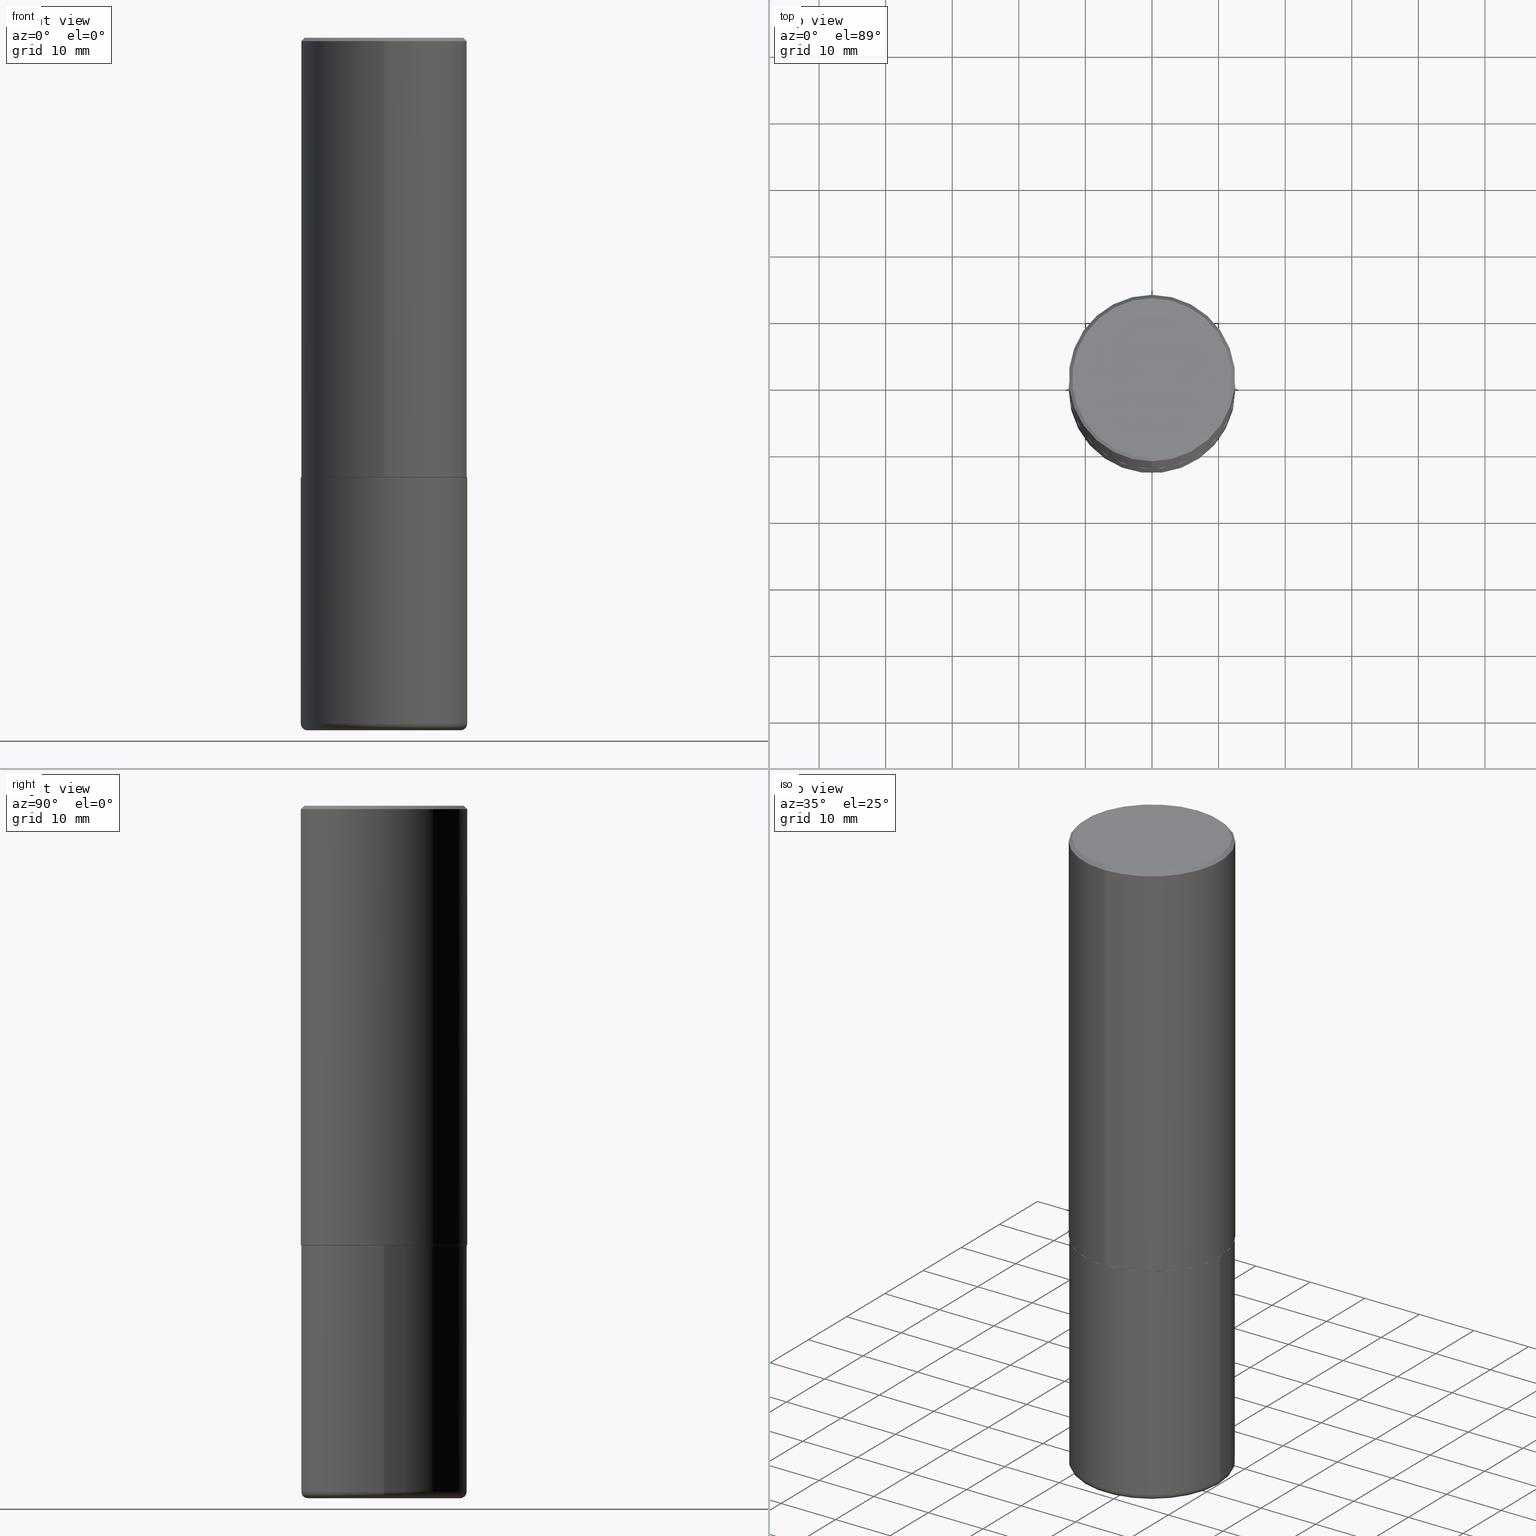
[diagram: canonical four-view strip — front | top / right | iso, engineering-drawing reading convention]
A machine part, canonical four-view strip (front | top / right | iso — engineering-drawing reading convention). The complete STEP part file that produces these views, byte-faithful:
ISO-10303-21;
HEADER;
FILE_DESCRIPTION (( 'STEP AP203' ),
    '1' );
FILE_NAME ('46866.STEP',
    '2024-03-05T05:16:05',
    ( '' ),
    ( '' ),
    'SwSTEP 2.0',
    'SolidWorks 2023',
    '' );
FILE_SCHEMA (( 'CONFIG_CONTROL_DESIGN' ));
ENDSEC;

DATA;
#1 = DIRECTION ( 'NONE',  ( 6.982962677686265922E-15, 1.000000000000000000, -3.495297233588267070E-15 ) ) ;
#2 = VERTEX_POINT ( 'NONE', #206 ) ;
#3 = DIRECTION ( 'NONE',  ( 0.000000000000000000, 0.000000000000000000, 1.000000000000000000 ) ) ;
#4 = DIRECTION ( 'NONE',  ( 2.445165534156573035E-29, -3.491915641649220758E-15, -1.000000000000000000 ) ) ;
#5 = FACE_OUTER_BOUND ( 'NONE', #256, .T. ) ;
#6 = CARTESIAN_POINT ( 'NONE',  ( 1.001297202692504327E-28, -1.429587034189326465E-14, -4.094500000000000917 ) ) ;
#7 = ADVANCED_FACE ( 'NONE', ( #263 ), #40, .T. ) ;
#8 = LINE ( 'NONE', #204, #114 ) ;
#9 = DIRECTION ( 'NONE',  ( -2.445165534156573035E-29, 3.491915641649220758E-15, 1.000000000000000000 ) ) ;
#10 = AXIS2_PLACEMENT_3D ( 'NONE', #104, #234, #47 ) ;
#11 = ADVANCED_FACE ( 'NONE', ( #75 ), #164, .T. ) ;
#12 = CARTESIAN_POINT ( 'NONE',  ( 3.496936074043366423E-15, 0.4921499999999912056, -2.597400000000002152 ) ) ;
#13 = DIRECTION ( 'NONE',  ( -6.982962677686265922E-15, -1.000000000000000000, 3.337287582609300506E-15 ) ) ;
#14 = CC_DESIGN_PERSON_AND_ORGANIZATION_ASSIGNMENT ( #26, #258, ( #295 ) ) ;
#15 = CYLINDRICAL_SURFACE ( 'NONE', #361, 0.4921500000000000874 ) ;
#16 = EDGE_CURVE ( 'NONE', #92, #259, #77, .T. ) ;
#17 = TOROIDAL_SURFACE ( 'NONE', #308, 0.4527499999999999858, 0.03940000000000030284 ) ;
#18 = CC_DESIGN_PERSON_AND_ORGANIZATION_ASSIGNMENT ( #363, #67, ( #29 ) ) ;
#19 = CIRCLE ( 'NONE', #367, 0.03940000000000026814 ) ;
#20 = CARTESIAN_POINT ( 'NONE',  ( -0.4527499999999999858, -1.094132374098898721E-14, -4.055100000000000371 ) ) ;
#21 = CIRCLE ( 'NONE', #28, 0.03940000000000026814 ) ;
#22 = ORIENTED_EDGE ( 'NONE', *, *, #304, .T. ) ;
#23 = DATE_AND_TIME ( #315, #414 ) ;
#24 = VERTEX_POINT ( 'NONE', #100 ) ;
#25 = ORIENTED_EDGE ( 'NONE', *, *, #48, .T. ) ;
#26 = PERSON_AND_ORGANIZATION ( #111, #375 ) ;
#27 = SHAPE_DEFINITION_REPRESENTATION ( #390, #227 ) ;
#28 = AXIS2_PLACEMENT_3D ( 'NONE', #20, #79, #178 ) ;
#29 = PRODUCT ( '46866', '46866', '', ( #264 ) ) ;
#30 = ADVANCED_FACE ( 'NONE', ( #66 ), #69, .F. ) ;
#31 = COORDINATED_UNIVERSAL_TIME_OFFSET ( 5, 0, .BEHIND. ) ;
#32 = DIRECTION ( 'NONE',  ( -2.445165534156573315E-29, 3.491915641649220758E-15, 1.000000000000000000 ) ) ;
#33 = ORIENTED_EDGE ( 'NONE', *, *, #101, .F. ) ;
#34 = EDGE_CURVE ( 'NONE', #127, #259, #109, .T. ) ;
#35 = CARTESIAN_POINT ( 'NONE',  ( -3.436665081823296565E-15, -0.4921500000000000874, 1.718546283037664290E-15 ) ) ;
#36 = DIRECTION ( 'NONE',  ( -2.445165534156573035E-29, 3.491915641649220758E-15, 1.000000000000000000 ) ) ;
#37 = CARTESIAN_POINT ( 'NONE',  ( -3.376394089603258656E-15, -0.4921500000000000874, -0.01999999999999838712 ) ) ;
#38 = CC_DESIGN_SECURITY_CLASSIFICATION ( #353, ( #295 ) ) ;
#39 = CARTESIAN_POINT ( 'NONE',  ( 0.4921499999999999764, -3.436665081823295777E-15, 2.399810400207969603E-29 ) ) ;
#40 = CYLINDRICAL_SURFACE ( 'NONE', #113, 0.4921500000000000874 ) ;
#41 = DIRECTION ( 'NONE',  ( 4.937700262164520432E-15, 0.7071067811865411334, -0.7071067811865537900 ) ) ;
#42 = DIRECTION ( 'NONE',  ( -4.851104656540936665E-15, -0.7071067811865460184, -0.7071067811865489050 ) ) ;
#43 = CARTESIAN_POINT ( 'NONE',  ( 6.353518123952439154E-29, -9.073393603261336214E-15, -2.598400000000000265 ) ) ;
#44 = TOROIDAL_SURFACE ( 'NONE', #397, 0.4527499999999999858, 0.03940000000000030284 ) ;
#45 = PLANE ( 'NONE',  #389 ) ;
#46 = DIRECTION ( 'NONE',  ( -2.445165534156572474E-29, 3.491915641649220758E-15, 1.000000000000000000 ) ) ;
#47 = DIRECTION ( 'NONE',  ( -6.982962677686264344E-15, -1.000000000000000000, 3.491915641649220363E-15 ) ) ;
#48 = EDGE_CURVE ( 'NONE', #2, #412, #313, .T. ) ;
#49 = APPROVAL_STATUS ( 'not_yet_approved' ) ;
#50 = DIRECTION ( 'NONE',  ( -2.445468806185136597E-29, 3.491481338843145583E-15, 1.000000000000000000 ) ) ;
#51 = ORIENTED_EDGE ( 'NONE', *, *, #48, .F. ) ;
#52 = COORDINATED_UNIVERSAL_TIME_OFFSET ( 5, 0, .BEHIND. ) ;
#53 = AXIS2_PLACEMENT_3D ( 'NONE', #362, #267, #233 ) ;
#54 = DIRECTION ( 'NONE',  ( -2.445468806185136597E-29, 3.491481338843145583E-15, 1.000000000000000000 ) ) ;
#55 = AXIS2_PLACEMENT_3D ( 'NONE', #198, #144, #106 ) ;
#56 = APPROVAL ( #49, 'UNSPECIFIED' ) ;
#57 = ORIENTED_EDGE ( 'NONE', *, *, #407, .T. ) ;
#58 = APPROVAL_DATE_TIME ( #383, #192 ) ;
#59 = DATE_AND_TIME ( #126, #99 ) ;
#60 = ORIENTED_EDGE ( 'NONE', *, *, #407, .F. ) ;
#61 = VERTEX_POINT ( 'NONE', #103 ) ;
#62 = EDGE_CURVE ( 'NONE', #396, #259, #231, .T. ) ;
#63 = ORIENTED_EDGE ( 'NONE', *, *, #325, .T. ) ;
#64 = VECTOR ( 'NONE', #32, 39.37007874015748143 ) ;
#65 = ORIENTED_EDGE ( 'NONE', *, *, #68, .F. ) ;
#66 = FACE_OUTER_BOUND ( 'NONE', #249, .T. ) ;
#67 = PERSON_AND_ORGANIZATION_ROLE ( 'design_owner' ) ;
#68 = EDGE_CURVE ( 'NONE', #259, #92, #384, .T. ) ;
#69 = PLANE ( 'NONE',  #257 ) ;
#70 = FACE_OUTER_BOUND ( 'NONE', #349, .T. ) ;
#71 = DIRECTION ( 'NONE',  ( -2.445468806185136597E-29, 3.491481338843145583E-15, 1.000000000000000000 ) ) ;
#72 = AXIS2_PLACEMENT_3D ( 'NONE', #303, #117, #13 ) ;
#73 = CARTESIAN_POINT ( 'NONE',  ( 4.890331068313172624E-31, -6.983831283298479479E-17, -0.02000000000000010797 ) ) ;
#74 = DIRECTION ( 'NONE',  ( -6.982962677686264344E-15, -1.000000000000000000, 3.491915641649220363E-15 ) ) ;
#75 = FACE_OUTER_BOUND ( 'NONE', #252, .T. ) ;
#76 = FACE_OUTER_BOUND ( 'NONE', #228, .T. ) ;
#77 = CIRCLE ( 'NONE', #321, 0.4921500000000000319 ) ;
#78 = EDGE_CURVE ( 'NONE', #314, #92, #8, .T. ) ;
#79 = DIRECTION ( 'NONE',  ( 7.105427357601001859E-15, 1.000000000000000000, -3.491481338843145583E-15 ) ) ;
#80 = ADVANCED_FACE ( 'NONE', ( #161 ), #124, .T. ) ;
#81 = APPLICATION_PROTOCOL_DEFINITION ( 'international standard', 'config_control_design', 1994, #110 ) ;
#82 = ORIENTED_EDGE ( 'NONE', *, *, #325, .F. ) ;
#83 = AXIS2_PLACEMENT_3D ( 'NONE', #6, #71, #265 ) ;
#84 = VECTOR ( 'NONE', #402, 39.37007874015748143 ) ;
#85 = CARTESIAN_POINT ( 'NONE',  ( 6.354306145991459756E-29, -9.072265110850031044E-15, -2.598400000000000265 ) ) ;
#86 = ORIENTED_EDGE ( 'NONE', *, *, #68, .T. ) ;
#87 = CC_DESIGN_PERSON_AND_ORGANIZATION_ASSIGNMENT ( #152, #250, ( #255 ) ) ;
#88 = DIRECTION ( 'NONE',  ( 1.000000000000000000, -6.982962677686265922E-15, 0.000000000000000000 ) ) ;
#89 = ORIENTED_EDGE ( 'NONE', *, *, #381, .T. ) ;
#90 = AXIS2_PLACEMENT_3D ( 'NONE', #173, #4, #1 ) ;
#91 = EDGE_CURVE ( 'NONE', #396, #254, #403, .T. ) ;
#92 = VERTEX_POINT ( 'NONE', #168 ) ;
#93 = UNCERTAINTY_MEASURE_WITH_UNIT (LENGTH_MEASURE( 1.000000000000000082E-05 ), #169, 'distance_accuracy_value', 'NONE');
#94 = SECURITY_CLASSIFICATION_LEVEL ( 'unclassified' ) ;
#95 = EDGE_CURVE ( 'NONE', #412, #97, #19, .T. ) ;
#96 = ORIENTED_EDGE ( 'NONE', *, *, #16, .T. ) ;
#97 = VERTEX_POINT ( 'NONE', #294 ) ;
#98 = EDGE_CURVE ( 'NONE', #24, #127, #197, .T. ) ;
#99 = LOCAL_TIME ( 0, 16, 5.000000000000000000, #320 ) ;
#100 = CARTESIAN_POINT ( 'NONE',  ( -3.429682119145545865E-15, -0.4911500000000090238, -2.598399999999999377 ) ) ;
#101 = EDGE_CURVE ( 'NONE', #127, #314, #345, .T. ) ;
#102 = CARTESIAN_POINT ( 'NONE',  ( 0.000000000000000000, 0.000000000000000000, 0.000000000000000000 ) ) ;
#103 = CARTESIAN_POINT ( 'NONE',  ( 0.4921499999999999764, -1.250893019267332682E-14, -2.598400000000000265 ) ) ;
#104 = CARTESIAN_POINT ( 'NONE',  ( -2.509946669845094675E-45, 3.584428912360186000E-31, 1.026493558322981695E-16 ) ) ;
#105 = DIRECTION ( 'NONE',  ( 2.438088387897960049E-29, -3.491481338843145188E-15, -1.000000000000000000 ) ) ;
#106 = DIRECTION ( 'NONE',  ( 1.000000000000000000, -6.982962677686265922E-15, 0.000000000000000000 ) ) ;
#107 = FACE_OUTER_BOUND ( 'NONE', #360, .T. ) ;
#108 = LOCAL_TIME ( 0, 16, 5.000000000000000000, #52 ) ;
#109 = LINE ( 'NONE', #35, #64 ) ;
#110 = APPLICATION_CONTEXT ( 'configuration controlled 3d designs of mechanical parts and assemblies' ) ;
#111 = PERSON ( 'UNSPECIFIED', 'UNSPECIFIED', 'UNSPECIFIED', ('UNSPECIFIED'), ('UNSPECIFIED'), ('UNSPECIFIED') ) ;
#112 = CARTESIAN_POINT ( 'NONE',  ( -0.4921499999999999764, -8.118349469953103765E-15, -2.598400000000000265 ) ) ;
#113 = AXIS2_PLACEMENT_3D ( 'NONE', #388, #199, #364 ) ;
#114 = VECTOR ( 'NONE', #393, 39.37007874015748143 ) ;
#115 = CC_DESIGN_APPROVAL ( #192, ( #295 ) ) ;
#116 = DIRECTION ( 'NONE',  ( 2.445165534156573035E-29, -3.491915641649220758E-15, -1.000000000000000000 ) ) ;
#117 = DIRECTION ( 'NONE',  ( -2.445165534156573035E-29, 3.491915641649220758E-15, 1.000000000000000000 ) ) ;
#118 = ORIENTED_EDGE ( 'NONE', *, *, #101, .T. ) ;
#119 = CARTESIAN_POINT ( 'NONE',  ( -3.376394089603258656E-15, -0.4921500000000000874, -0.01999999999999838712 ) ) ;
#120 = ORIENTED_EDGE ( 'NONE', *, *, #78, .T. ) ;
#121 = APPROVAL_ROLE ( '' ) ;
#122 = ORIENTED_EDGE ( 'NONE', *, *, #156, .F. ) ;
#123 = ORIENTED_EDGE ( 'NONE', *, *, #91, .T. ) ;
#124 = CONICAL_SURFACE ( 'NONE', #90, 0.4921500000000000319, 0.7853981633974428389 ) ;
#125 = VECTOR ( 'NONE', #339, 39.37007874015748854 ) ;
#126 = CALENDAR_DATE ( 2024, 5, 3 ) ;
#127 = VERTEX_POINT ( 'NONE', #391 ) ;
#128 = EDGE_LOOP ( 'NONE', ( #118, #120, #65, #410 ) ) ;
#129 = DIRECTION ( 'NONE',  ( -6.982962677686266711E-15, -1.000000000000000000, 3.330506545156064285E-15 ) ) ;
#130 = DIRECTION ( 'NONE',  ( 1.000000000000000000, 0.000000000000000000, 0.000000000000000000 ) ) ;
#131 =( GEOMETRIC_REPRESENTATION_CONTEXT ( 3 ) GLOBAL_UNCERTAINTY_ASSIGNED_CONTEXT ( ( #93 ) ) GLOBAL_UNIT_ASSIGNED_CONTEXT ( ( #169, #280, #135 ) ) REPRESENTATION_CONTEXT ( 'NONE', 'WORKASPACE' ) );
#132 = DIRECTION ( 'NONE',  ( -2.445165534156573035E-29, 3.491915641649220758E-15, 1.000000000000000000 ) ) ;
#133 = DIRECTION ( 'NONE',  ( -6.982962677686266711E-15, -1.000000000000000000, 3.330506545156064285E-15 ) ) ;
#134 = CARTESIAN_POINT ( 'NONE',  ( 0.4527499999999999858, -1.731984232946529805E-14, -4.055100000000000371 ) ) ;
#135 =( NAMED_UNIT ( * ) SI_UNIT ( $, .STERADIAN. ) SOLID_ANGLE_UNIT ( ) );
#136 = ORIENTED_EDGE ( 'NONE', *, *, #78, .F. ) ;
#137 = CIRCLE ( 'NONE', #377, 0.4527499999999999858 ) ;
#138 = CARTESIAN_POINT ( 'NONE',  ( 6.351072958418283916E-29, -9.069901687619687764E-15, -2.597400000000000375 ) ) ;
#139 = AXIS2_PLACEMENT_3D ( 'NONE', #376, #54, #177 ) ;
#140 = CARTESIAN_POINT ( 'NONE',  ( 9.916620555961347550E-29, -1.415830597714284070E-14, -4.055100000000000371 ) ) ;
#141 = DIRECTION ( 'NONE',  ( -2.445468806185136597E-29, 3.491481338843145583E-15, 1.000000000000000000 ) ) ;
#142 = FACE_OUTER_BOUND ( 'NONE', #350, .T. ) ;
#143 = CC_DESIGN_APPROVAL ( #213, ( #353 ) ) ;
#144 = DIRECTION ( 'NONE',  ( -2.445468806185136597E-29, 3.491481338843145583E-15, 1.000000000000000000 ) ) ;
#145 = CALENDAR_DATE ( 2024, 5, 3 ) ;
#146 = APPLICATION_CONTEXT ( 'configuration controlled 3d designs of mechanical parts and assemblies' ) ;
#147 = EDGE_CURVE ( 'NONE', #412, #2, #137, .T. ) ;
#148 = AXIS2_PLACEMENT_3D ( 'NONE', #333, #9, #74 ) ;
#149 = DATE_AND_TIME ( #145, #108 ) ;
#150 = AXIS2_PLACEMENT_3D ( 'NONE', #163, #366, #395 ) ;
#151 = DIRECTION ( 'NONE',  ( -2.445468806185136597E-29, 3.491481338843145583E-15, 1.000000000000000000 ) ) ;
#152 = PERSON_AND_ORGANIZATION ( #111, #375 ) ;
#153 = ORIENTED_EDGE ( 'NONE', *, *, #95, .F. ) ;
#154 = ORIENTED_EDGE ( 'NONE', *, *, #147, .T. ) ;
#155 = APPROVAL_STATUS ( 'not_yet_approved' ) ;
#156 = EDGE_CURVE ( 'NONE', #324, #24, #195, .T. ) ;
#157 = AXIS2_PLACEMENT_3D ( 'NONE', #138, #132, #129 ) ;
#158 = CC_DESIGN_PERSON_AND_ORGANIZATION_ASSIGNMENT ( #191, #319, ( #295 ) ) ;
#159 = ORIENTED_EDGE ( 'NONE', *, *, #243, .F. ) ;
#160 = PERSON_AND_ORGANIZATION ( #111, #375 ) ;
#161 = FACE_OUTER_BOUND ( 'NONE', #225, .T. ) ;
#162 = ORIENTED_EDGE ( 'NONE', *, *, #156, .T. ) ;
#163 = CARTESIAN_POINT ( 'NONE',  ( 6.353518123952441396E-29, -9.073393603261339369E-15, -2.598400000000000709 ) ) ;
#164 = CONICAL_SURFACE ( 'NONE', #186, 0.4911499999999999755, 0.7853981633974141952 ) ;
#165 = DIRECTION ( 'NONE',  ( -2.445468806185136877E-29, 3.491481338843145188E-15, 1.000000000000000000 ) ) ;
#166 = APPROVAL_PERSON_ORGANIZATION ( #160, #213, #292 ) ;
#167 = AXIS2_PLACEMENT_3D ( 'NONE', #205, #296, #133 ) ;
#168 = CARTESIAN_POINT ( 'NONE',  ( 3.436665081823296565E-15, 0.4921499999999999764, -0.02000000000000182535 ) ) ;
#169 =( CONVERSION_BASED_UNIT ( 'INCH', #307 ) LENGTH_UNIT ( ) NAMED_UNIT ( #214 ) );
#170 = CARTESIAN_POINT ( 'NONE',  ( 6.354306145991459756E-29, -9.072265110850031044E-15, -2.598400000000000265 ) ) ;
#171 = ADVANCED_FACE ( 'NONE', ( #107 ), #44, .T. ) ;
#172 = CARTESIAN_POINT ( 'NONE',  ( 0.4527499999999999858, -1.745740669421572042E-14, -4.094500000000000917 ) ) ;
#173 = CARTESIAN_POINT ( 'NONE',  ( 4.890331068313172624E-31, -6.983831283298479479E-17, -0.02000000000000010797 ) ) ;
#174 = DIRECTION ( 'NONE',  ( 1.000000000000000000, -6.982962677686266711E-15, 0.000000000000000000 ) ) ;
#175 = AXIS2_PLACEMENT_3D ( 'NONE', #379, #151, #174 ) ;
#176 = EDGE_CURVE ( 'NONE', #324, #314, #335, .T. ) ;
#177 = DIRECTION ( 'NONE',  ( 1.000000000000000000, -6.982962677686265922E-15, 4.876176775795935793E-29 ) ) ;
#178 = DIRECTION ( 'NONE',  ( -1.000000000000000000, 7.105427357601027102E-15, 0.000000000000000000 ) ) ;
#179 = CC_DESIGN_DATE_AND_TIME_ASSIGNMENT ( #59, #291, ( #353 ) ) ;
#180 =( LENGTH_UNIT ( ) NAMED_UNIT ( * ) SI_UNIT ( $, .METRE. ) );
#181 = AXIS2_PLACEMENT_3D ( 'NONE', #372, #3, #130 ) ;
#182 = APPROVAL_ROLE ( '' ) ;
#183 = FACE_OUTER_BOUND ( 'NONE', #224, .T. ) ;
#184 = ADVANCED_FACE ( 'NONE', ( #283 ), #15, .T. ) ;
#185 = ORIENTED_EDGE ( 'NONE', *, *, #341, .F. ) ;
#186 = AXIS2_PLACEMENT_3D ( 'NONE', #298, #236, #272 ) ;
#187 = ORIENTED_EDGE ( 'NONE', *, *, #359, .T. ) ;
#188 = AXIS2_PLACEMENT_3D ( 'NONE', #102, #328, #237 ) ;
#189 = ADVANCED_FACE ( 'NONE', ( #401 ), #342, .T. ) ;
#190 = ORIENTED_EDGE ( 'NONE', *, *, #16, .F. ) ;
#191 = PERSON_AND_ORGANIZATION ( #111, #375 ) ;
#192 = APPROVAL ( #155, 'UNSPECIFIED' ) ;
#193 = PERSON_AND_ORGANIZATION ( #111, #375 ) ;
#194 = ORIENTED_EDGE ( 'NONE', *, *, #359, .F. ) ;
#195 = CIRCLE ( 'NONE', #150, 0.4911499999999999755 ) ;
#196 = VECTOR ( 'NONE', #165, 39.37007874015748143 ) ;
#197 = LINE ( 'NONE', #327, #288 ) ;
#198 = CARTESIAN_POINT ( 'NONE',  ( 6.354306145991459756E-29, -9.072265110850031044E-15, -2.598400000000000265 ) ) ;
#199 = DIRECTION ( 'NONE',  ( -2.445165534156573035E-29, 3.491915641649220758E-15, 1.000000000000000000 ) ) ;
#200 = MANIFOLD_SOLID_BREP ( 'Body-Move/Copy2[2]', #278 ) ;
#201 = PERSON_AND_ORGANIZATION_ROLE ( 'classification_officer' ) ;
#202 = DIRECTION ( 'NONE',  ( 2.445165534156572474E-29, -3.491915641649220758E-15, -1.000000000000000000 ) ) ;
#203 = VECTOR ( 'NONE', #41, 39.37007874015748854 ) ;
#204 = CARTESIAN_POINT ( 'NONE',  ( 3.496936074043333291E-15, 0.4921500000000000874, -1.718546283037664290E-15 ) ) ;
#205 = CARTESIAN_POINT ( 'NONE',  ( 6.351072958418283916E-29, -9.069901687619687764E-15, -2.597400000000000375 ) ) ;
#206 = CARTESIAN_POINT ( 'NONE',  ( -0.4527499999999999858, -1.087012900441945672E-14, -4.094500000000000917 ) ) ;
#207 = ADVANCED_FACE ( 'NONE', ( #183 ), #45, .F. ) ;
#208 = CARTESIAN_POINT ( 'NONE',  ( -3.307789109625543719E-15, -0.4721500000000000696, 1.751357326036977986E-15 ) ) ;
#209 = CARTESIAN_POINT ( 'NONE',  ( 1.001297202692504327E-28, -1.429587034189326465E-14, -4.094500000000000917 ) ) ;
#210 = CARTESIAN_POINT ( 'NONE',  ( 9.916620555961347550E-29, -1.415830597714284070E-14, -4.055100000000000371 ) ) ;
#211 = AXIS2_PLACEMENT_3D ( 'NONE', #73, #116, #394 ) ;
#212 = DESIGN_CONTEXT ( 'detailed design', #146, 'design' ) ;
#213 = APPROVAL ( #417, 'UNSPECIFIED' ) ;
#214 = DIMENSIONAL_EXPONENTS ( 1.000000000000000000, 0.000000000000000000, 0.000000000000000000, 0.000000000000000000, 0.000000000000000000, 0.000000000000000000, 0.000000000000000000 ) ;
#215 = CARTESIAN_POINT ( 'NONE',  ( 9.916620555961347550E-29, -1.415830597714284070E-14, -4.055100000000000371 ) ) ;
#216 = CONICAL_SURFACE ( 'NONE', #72, 0.4911499999999999755, 0.7853981633974141952 ) ;
#217 = ORIENTED_EDGE ( 'NONE', *, *, #62, .F. ) ;
#218 = CARTESIAN_POINT ( 'NONE',  ( 3.493383360364596291E-15, 0.4911499999999908717, -2.598400000000002485 ) ) ;
#219 = VERTEX_POINT ( 'NONE', #112 ) ;
#220 = PERSON_AND_ORGANIZATION ( #111, #375 ) ;
#221 = PLANE ( 'NONE',  #404 ) ;
#222 = ORIENTED_EDGE ( 'NONE', *, *, #34, .T. ) ;
#223 = LOCAL_TIME ( 0, 16, 5.000000000000000000, #31 ) ;
#224 = EDGE_LOOP ( 'NONE', ( #194, #122 ) ) ;
#225 = EDGE_LOOP ( 'NONE', ( #380, #368, #86, #185 ) ) ;
#226 = ORIENTED_EDGE ( 'NONE', *, *, #281, .T. ) ;
#227 = ADVANCED_BREP_SHAPE_REPRESENTATION ( '46866', ( #340, #200, #181 ), #131 ) ;
#228 = EDGE_LOOP ( 'NONE', ( #413, #25, #330, #273 ) ) ;
#229 = CLOSED_SHELL ( 'NONE', ( #400, #171, #30, #189, #318, #245 ) ) ;
#230 = CONICAL_SURFACE ( 'NONE', #211, 0.4921500000000000319, 0.7853981633974428389 ) ;
#231 = LINE ( 'NONE', #37, #338 ) ;
#232 = EDGE_CURVE ( 'NONE', #2, #302, #21, .T. ) ;
#233 = DIRECTION ( 'NONE',  ( -6.982962677686265922E-15, -1.000000000000000000, 3.495297233588267070E-15 ) ) ;
#234 = DIRECTION ( 'NONE',  ( -2.445165534156573035E-29, 3.491915641649220758E-15, 1.000000000000000000 ) ) ;
#235 = ADVANCED_FACE ( 'NONE', ( #142 ), #216, .T. ) ;
#236 = DIRECTION ( 'NONE',  ( -2.445165534156573035E-29, 3.491915641649220758E-15, 1.000000000000000000 ) ) ;
#237 = DIRECTION ( 'NONE',  ( 1.000000000000000000, -6.982962677686265922E-15, 4.876176775795935793E-29 ) ) ;
#238 = APPROVAL_PERSON_ORGANIZATION ( #411, #192, #121 ) ;
#239 = DIRECTION ( 'NONE',  ( -6.982962677686266711E-15, -1.000000000000000000, 3.491481338843145583E-15 ) ) ;
#240 = CARTESIAN_POINT ( 'NONE',  ( 6.562578236870009420E-29, -1.923703063347065825E-14, -4.094500000000000917 ) ) ;
#241 = DIRECTION ( 'NONE',  ( -6.982962677686265922E-15, -1.000000000000000000, 3.491915641649220758E-15 ) ) ;
#242 = CC_DESIGN_APPROVAL ( #56, ( #255 ) ) ;
#243 = EDGE_CURVE ( 'NONE', #97, #302, #271, .T. ) ;
#244 = LINE ( 'NONE', #39, #196 ) ;
#245 = ADVANCED_FACE ( 'NONE', ( #311 ), #221, .T. ) ;
#246 = COORDINATED_UNIVERSAL_TIME_OFFSET ( 5, 0, .BEHIND. ) ;
#247 = AXIS2_PLACEMENT_3D ( 'NONE', #332, #202, #344 ) ;
#248 = DIRECTION ( 'NONE',  ( 1.000000000000000000, -6.982962677686266711E-15, 0.000000000000000000 ) ) ;
#249 = EDGE_LOOP ( 'NONE', ( #226, #354 ) ) ;
#250 = PERSON_AND_ORGANIZATION_ROLE ( 'creator' ) ;
#251 = DIRECTION ( 'NONE',  ( -2.445468806185136597E-29, 3.491481338843145583E-15, 1.000000000000000000 ) ) ;
#252 = EDGE_LOOP ( 'NONE', ( #187, #357, #33, #286 ) ) ;
#253 = COORDINATED_UNIVERSAL_TIME_OFFSET ( 5, 0, .BEHIND. ) ;
#254 = VERTEX_POINT ( 'NONE', #406 ) ;
#255 = PRODUCT_DEFINITION ( 'UNKNOWN', '', #295, #212 ) ;
#256 = EDGE_LOOP ( 'NONE', ( #277, #22, #356, #316 ) ) ;
#257 = AXIS2_PLACEMENT_3D ( 'NONE', #170, #105, #329 ) ;
#258 = PERSON_AND_ORGANIZATION_ROLE ( 'design_supplier' ) ;
#259 = VERTEX_POINT ( 'NONE', #119 ) ;
#260 = EDGE_LOOP ( 'NONE', ( #217, #60, #317, #96 ) ) ;
#261 = ORIENTED_EDGE ( 'NONE', *, *, #306, .T. ) ;
#262 = DATE_AND_TIME ( #326, #223 ) ;
#263 = FACE_OUTER_BOUND ( 'NONE', #287, .T. ) ;
#264 = MECHANICAL_CONTEXT ( 'NONE', #110, 'mechanical' ) ;
#265 = DIRECTION ( 'NONE',  ( 1.000000000000000000, -6.982962677686265133E-15, 0.000000000000000000 ) ) ;
#266 = FACE_OUTER_BOUND ( 'NONE', #260, .T. ) ;
#267 = DIRECTION ( 'NONE',  ( -2.445165534156573035E-29, 3.491915641649220758E-15, 1.000000000000000000 ) ) ;
#268 = CC_DESIGN_DATE_AND_TIME_ASSIGNMENT ( #23, #285, ( #255 ) ) ;
#269 = CYLINDRICAL_SURFACE ( 'NONE', #188, 0.4921499999999999764 ) ;
#270 = DIRECTION ( 'NONE',  ( -4.937700262164378437E-15, -0.7071067811865208164, 0.7071067811865739960 ) ) ;
#271 = CIRCLE ( 'NONE', #346, 0.4921499999999999209 ) ;
#272 = DIRECTION ( 'NONE',  ( -6.982962677686265922E-15, -1.000000000000000000, 3.337287582609300506E-15 ) ) ;
#273 = ORIENTED_EDGE ( 'NONE', *, *, #306, .F. ) ;
#274 = CARTESIAN_POINT ( 'NONE',  ( 3.489830646685794998E-15, 0.4911499999999908717, -2.598400000000002485 ) ) ;
#275 = PRODUCT_RELATED_PRODUCT_CATEGORY ( 'detail', '', ( #29 ) ) ;
#276 = CARTESIAN_POINT ( 'NONE',  ( -0.4921499999999999764, 3.496936074043332897E-15, -2.420853904668951509E-29 ) ) ;
#277 = ORIENTED_EDGE ( 'NONE', *, *, #243, .T. ) ;
#278 = CLOSED_SHELL ( 'NONE', ( #11, #184, #80, #347, #7, #235, #207, #416 ) ) ;
#279 = DIRECTION ( 'NONE',  ( 2.438088387897960049E-29, -3.491481338843145188E-15, -1.000000000000000000 ) ) ;
#280 =( NAMED_UNIT ( * ) PLANE_ANGLE_UNIT ( ) SI_UNIT ( $, .RADIAN. ) );
#281 = EDGE_CURVE ( 'NONE', #61, #219, #385, .T. ) ;
#282 = CIRCLE ( 'NONE', #55, 0.4921499999999999764 ) ;
#283 = FACE_OUTER_BOUND ( 'NONE', #128, .T. ) ;
#284 = EDGE_LOOP ( 'NONE', ( #387, #261, #89, #323 ) ) ;
#285 = DATE_TIME_ROLE ( 'creation_date' ) ;
#286 = ORIENTED_EDGE ( 'NONE', *, *, #98, .F. ) ;
#287 = EDGE_LOOP ( 'NONE', ( #136, #63, #222, #190 ) ) ;
#288 = VECTOR ( 'NONE', #270, 39.37007874015748854 ) ;
#289 = CIRCLE ( 'NONE', #167, 0.4921500000000002539 ) ;
#290 = ORIENTED_EDGE ( 'NONE', *, *, #232, .T. ) ;
#291 = DATE_TIME_ROLE ( 'classification_date' ) ;
#292 = APPROVAL_ROLE ( '' ) ;
#293 = DIRECTION ( 'NONE',  ( 1.000000000000000000, -6.982962677686265133E-15, 0.000000000000000000 ) ) ;
#294 = CARTESIAN_POINT ( 'NONE',  ( 0.4921500000000000874, -1.759497105896613648E-14, -4.055100000000000371 ) ) ;
#295 = PRODUCT_DEFINITION_FORMATION_WITH_SPECIFIED_SOURCE ( 'ANY', '', #29, .NOT_KNOWN. ) ;
#296 = DIRECTION ( 'NONE',  ( -2.445165534156573035E-29, 3.491915641649220758E-15, 1.000000000000000000 ) ) ;
#297 = DIRECTION ( 'NONE',  ( 1.000000000000000000, -6.982962677686230423E-15, 0.000000000000000000 ) ) ;
#298 = CARTESIAN_POINT ( 'NONE',  ( 6.353518123952441396E-29, -9.073393603261339369E-15, -2.598400000000000709 ) ) ;
#299 = DIRECTION ( 'NONE',  ( -6.982962677686265922E-15, -1.000000000000000000, 3.495297233588267070E-15 ) ) ;
#300 = CIRCLE ( 'NONE', #175, 0.4921499999999999209 ) ;
#301 = DIRECTION ( 'NONE',  ( 1.000000000000000000, -6.982962677686270655E-15, 4.883557194083114022E-29 ) ) ;
#302 = VERTEX_POINT ( 'NONE', #382 ) ;
#303 = CARTESIAN_POINT ( 'NONE',  ( 6.353518123952441396E-29, -9.073393603261339369E-15, -2.598400000000000709 ) ) ;
#304 = EDGE_CURVE ( 'NONE', #302, #219, #351, .T. ) ;
#305 = CARTESIAN_POINT ( 'NONE',  ( 0.000000000000000000, 0.000000000000000000, 0.000000000000000000 ) ) ;
#306 = EDGE_CURVE ( 'NONE', #302, #97, #300, .T. ) ;
#307 = LENGTH_MEASURE_WITH_UNIT ( LENGTH_MEASURE( 0.02539999999999999897 ), #180 );
#308 = AXIS2_PLACEMENT_3D ( 'NONE', #215, #50, #336 ) ;
#309 = APPLICATION_PROTOCOL_DEFINITION ( 'international standard', 'config_control_design', 1994, #146 ) ;
#310 = APPROVAL_DATE_TIME ( #149, #56 ) ;
#311 = FACE_OUTER_BOUND ( 'NONE', #343, .T. ) ;
#312 = CC_DESIGN_PERSON_AND_ORGANIZATION_ASSIGNMENT ( #193, #201, ( #353 ) ) ;
#313 = CIRCLE ( 'NONE', #83, 0.4527499999999999858 ) ;
#314 = VERTEX_POINT ( 'NONE', #12 ) ;
#315 = CALENDAR_DATE ( 2024, 5, 3 ) ;
#316 = ORIENTED_EDGE ( 'NONE', *, *, #381, .F. ) ;
#317 = ORIENTED_EDGE ( 'NONE', *, *, #341, .T. ) ;
#318 = ADVANCED_FACE ( 'NONE', ( #76 ), #17, .T. ) ;
#319 = PERSON_AND_ORGANIZATION_ROLE ( 'creator' ) ;
#320 = COORDINATED_UNIVERSAL_TIME_OFFSET ( 5, 0, .BEHIND. ) ;
#321 = AXIS2_PLACEMENT_3D ( 'NONE', #371, #399, #299 ) ;
#322 = AXIS2_PLACEMENT_3D ( 'NONE', #85, #374, #88 ) ;
#323 = ORIENTED_EDGE ( 'NONE', *, *, #352, .F. ) ;
#324 = VERTEX_POINT ( 'NONE', #218 ) ;
#325 = EDGE_CURVE ( 'NONE', #314, #127, #289, .T. ) ;
#326 = CALENDAR_DATE ( 2024, 5, 3 ) ;
#327 = CARTESIAN_POINT ( 'NONE',  ( -3.429682119145545865E-15, -0.4911500000000090238, -2.598399999999999377 ) ) ;
#328 = DIRECTION ( 'NONE',  ( -2.445468806185136597E-29, 3.491481338843145583E-15, 1.000000000000000000 ) ) ;
#329 = DIRECTION ( 'NONE',  ( -1.000000000000000000, 6.982962677686265922E-15, -4.876176775795935793E-29 ) ) ;
#330 = ORIENTED_EDGE ( 'NONE', *, *, #95, .T. ) ;
#331 = AXIS2_PLACEMENT_3D ( 'NONE', #398, #36, #392 ) ;
#332 = CARTESIAN_POINT ( 'NONE',  ( 3.297005828269570364E-15, 0.4721500000000000696, -1.597383292288530583E-15 ) ) ;
#333 = CARTESIAN_POINT ( 'NONE',  ( -2.509946669845094675E-45, 3.584428912360186000E-31, 1.026493558322981695E-16 ) ) ;
#334 = CARTESIAN_POINT ( 'NONE',  ( 3.436665081823296565E-15, 0.4921499999999999764, -0.02000000000000182535 ) ) ;
#335 = LINE ( 'NONE', #274, #125 ) ;
#336 = DIRECTION ( 'NONE',  ( 1.000000000000000000, -6.982962677686270655E-15, 4.883557194083114022E-29 ) ) ;
#337 = DIRECTION ( 'NONE',  ( -6.982962677686265922E-15, -1.000000000000000000, 3.491915641649220758E-15 ) ) ;
#338 = VECTOR ( 'NONE', #42, 39.37007874015748854 ) ;
#339 = DIRECTION ( 'NONE',  ( 5.024295867787889629E-15, 0.7071067811865257013, 0.7071067811865691111 ) ) ;
#340 = MANIFOLD_SOLID_BREP ( 'Body-Move/Copy2[1]', #229 ) ;
#341 = EDGE_CURVE ( 'NONE', #254, #92, #370, .T. ) ;
#342 = CYLINDRICAL_SURFACE ( 'NONE', #139, 0.4921499999999999764 ) ;
#343 = EDGE_LOOP ( 'NONE', ( #358, #51 ) ) ;
#344 = DIRECTION ( 'NONE',  ( 6.982962677686265922E-15, 1.000000000000000000, -3.491915641649220758E-15 ) ) ;
#345 = CIRCLE ( 'NONE', #157, 0.4921500000000002539 ) ;
#346 = AXIS2_PLACEMENT_3D ( 'NONE', #210, #141, #248 ) ;
#347 = ADVANCED_FACE ( 'NONE', ( #266 ), #230, .T. ) ;
#348 = DIRECTION ( 'NONE',  ( -2.445165534156573035E-29, 3.491915641649220758E-15, 1.000000000000000000 ) ) ;
#349 = EDGE_LOOP ( 'NONE', ( #57, #123 ) ) ;
#350 = EDGE_LOOP ( 'NONE', ( #415, #162, #418, #82 ) ) ;
#351 = LINE ( 'NONE', #276, #84 ) ;
#352 = EDGE_CURVE ( 'NONE', #219, #61, #282, .T. ) ;
#353 = SECURITY_CLASSIFICATION ( '', '', #94 ) ;
#354 = ORIENTED_EDGE ( 'NONE', *, *, #352, .T. ) ;
#355 = CALENDAR_DATE ( 2024, 5, 3 ) ;
#356 = ORIENTED_EDGE ( 'NONE', *, *, #281, .F. ) ;
#357 = ORIENTED_EDGE ( 'NONE', *, *, #176, .T. ) ;
#358 = ORIENTED_EDGE ( 'NONE', *, *, #147, .F. ) ;
#359 = EDGE_CURVE ( 'NONE', #24, #324, #378, .T. ) ;
#360 = EDGE_LOOP ( 'NONE', ( #154, #290, #159, #153 ) ) ;
#361 = AXIS2_PLACEMENT_3D ( 'NONE', #305, #348, #337 ) ;
#362 = CARTESIAN_POINT ( 'NONE',  ( 4.890331068313172624E-31, -6.983831283298479479E-17, -0.02000000000000010797 ) ) ;
#363 = PERSON_AND_ORGANIZATION ( #111, #375 ) ;
#364 = DIRECTION ( 'NONE',  ( -6.982962677686265922E-15, -1.000000000000000000, 3.491915641649220758E-15 ) ) ;
#365 = PLANE ( 'NONE',  #247 ) ;
#366 = DIRECTION ( 'NONE',  ( -2.445165534156573035E-29, 3.491915641649220758E-15, 1.000000000000000000 ) ) ;
#367 = AXIS2_PLACEMENT_3D ( 'NONE', #134, #239, #297 ) ;
#368 = ORIENTED_EDGE ( 'NONE', *, *, #62, .T. ) ;
#369 = CIRCLE ( 'NONE', #10, 0.4721500000000000696 ) ;
#370 = LINE ( 'NONE', #334, #203 ) ;
#371 = CARTESIAN_POINT ( 'NONE',  ( 4.890331068313172624E-31, -6.983831283298479479E-17, -0.02000000000000010797 ) ) ;
#372 = CARTESIAN_POINT ( 'NONE',  ( 0.000000000000000000, 0.000000000000000000, 0.000000000000000000 ) ) ;
#373 = DIRECTION ( 'NONE',  ( -2.445468806185136597E-29, 3.491481338843145583E-15, 1.000000000000000000 ) ) ;
#374 = DIRECTION ( 'NONE',  ( -2.445468806185136597E-29, 3.491481338843145583E-15, 1.000000000000000000 ) ) ;
#375 = ORGANIZATION ( 'UNSPECIFIED', 'UNSPECIFIED', '' ) ;
#376 = CARTESIAN_POINT ( 'NONE',  ( 0.000000000000000000, 0.000000000000000000, 0.000000000000000000 ) ) ;
#377 = AXIS2_PLACEMENT_3D ( 'NONE', #209, #373, #293 ) ;
#378 = CIRCLE ( 'NONE', #331, 0.4911499999999999755 ) ;
#379 = CARTESIAN_POINT ( 'NONE',  ( 9.916620555961347550E-29, -1.415830597714284070E-14, -4.055100000000000371 ) ) ;
#380 = ORIENTED_EDGE ( 'NONE', *, *, #91, .F. ) ;
#381 = EDGE_CURVE ( 'NONE', #97, #61, #244, .T. ) ;
#382 = CARTESIAN_POINT ( 'NONE',  ( -0.4921500000000000874, -1.066136990309950544E-14, -4.055100000000000371 ) ) ;
#383 = DATE_AND_TIME ( #355, #408 ) ;
#384 = CIRCLE ( 'NONE', #53, 0.4921500000000000319 ) ;
#385 = CIRCLE ( 'NONE', #322, 0.4921499999999999764 ) ;
#386 = APPROVAL_DATE_TIME ( #262, #213 ) ;
#387 = ORIENTED_EDGE ( 'NONE', *, *, #304, .F. ) ;
#388 = CARTESIAN_POINT ( 'NONE',  ( 0.000000000000000000, 0.000000000000000000, 0.000000000000000000 ) ) ;
#389 = AXIS2_PLACEMENT_3D ( 'NONE', #43, #46, #241 ) ;
#390 = PRODUCT_DEFINITION_SHAPE ( 'NONE', 'NONE',  #255 ) ;
#391 = CARTESIAN_POINT ( 'NONE',  ( -3.436665081823234245E-15, -0.4921500000000093022, -2.597399999999999043 ) ) ;
#392 = DIRECTION ( 'NONE',  ( -6.982962677686265922E-15, -1.000000000000000000, 3.337287582609300506E-15 ) ) ;
#393 = DIRECTION ( 'NONE',  ( -2.445165534156573315E-29, 3.491915641649220758E-15, 1.000000000000000000 ) ) ;
#394 = DIRECTION ( 'NONE',  ( 6.982962677686265922E-15, 1.000000000000000000, -3.495297233588267070E-15 ) ) ;
#395 = DIRECTION ( 'NONE',  ( -6.982962677686265922E-15, -1.000000000000000000, 3.337287582609300506E-15 ) ) ;
#396 = VERTEX_POINT ( 'NONE', #208 ) ;
#397 = AXIS2_PLACEMENT_3D ( 'NONE', #140, #251, #301 ) ;
#398 = CARTESIAN_POINT ( 'NONE',  ( 6.353518123952441396E-29, -9.073393603261339369E-15, -2.598400000000000709 ) ) ;
#399 = DIRECTION ( 'NONE',  ( -2.445165534156573035E-29, 3.491915641649220758E-15, 1.000000000000000000 ) ) ;
#400 = ADVANCED_FACE ( 'NONE', ( #5 ), #269, .T. ) ;
#401 = FACE_OUTER_BOUND ( 'NONE', #284, .T. ) ;
#402 = DIRECTION ( 'NONE',  ( -2.445468806185136877E-29, 3.491481338843145188E-15, 1.000000000000000000 ) ) ;
#403 = CIRCLE ( 'NONE', #148, 0.4721500000000000696 ) ;
#404 = AXIS2_PLACEMENT_3D ( 'NONE', #240, #279, #409 ) ;
#405 = APPROVAL_PERSON_ORGANIZATION ( #220, #56, #182 ) ;
#406 = CARTESIAN_POINT ( 'NONE',  ( 3.366835455046433267E-15, 0.4721500000000000696, -1.546058614372381449E-15 ) ) ;
#407 = EDGE_CURVE ( 'NONE', #254, #396, #369, .T. ) ;
#408 = LOCAL_TIME ( 0, 16, 5.000000000000000000, #253 ) ;
#409 = DIRECTION ( 'NONE',  ( -1.000000000000000000, 6.982962677686265922E-15, -4.876176775795935793E-29 ) ) ;
#410 = ORIENTED_EDGE ( 'NONE', *, *, #34, .F. ) ;
#411 = PERSON_AND_ORGANIZATION ( #111, #375 ) ;
#412 = VERTEX_POINT ( 'NONE', #172 ) ;
#413 = ORIENTED_EDGE ( 'NONE', *, *, #232, .F. ) ;
#414 = LOCAL_TIME ( 0, 16, 5.000000000000000000, #246 ) ;
#415 = ORIENTED_EDGE ( 'NONE', *, *, #176, .F. ) ;
#416 = ADVANCED_FACE ( 'NONE', ( #70 ), #365, .F. ) ;
#417 = APPROVAL_STATUS ( 'not_yet_approved' ) ;
#418 = ORIENTED_EDGE ( 'NONE', *, *, #98, .T. ) ;
ENDSEC;
END-ISO-10303-21;
